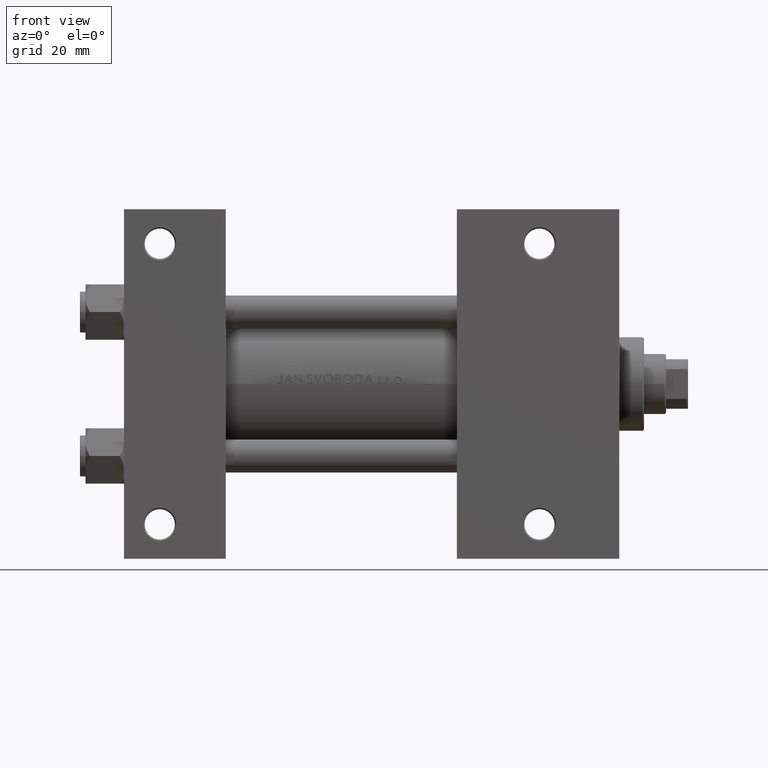
[diagram: clean part render]
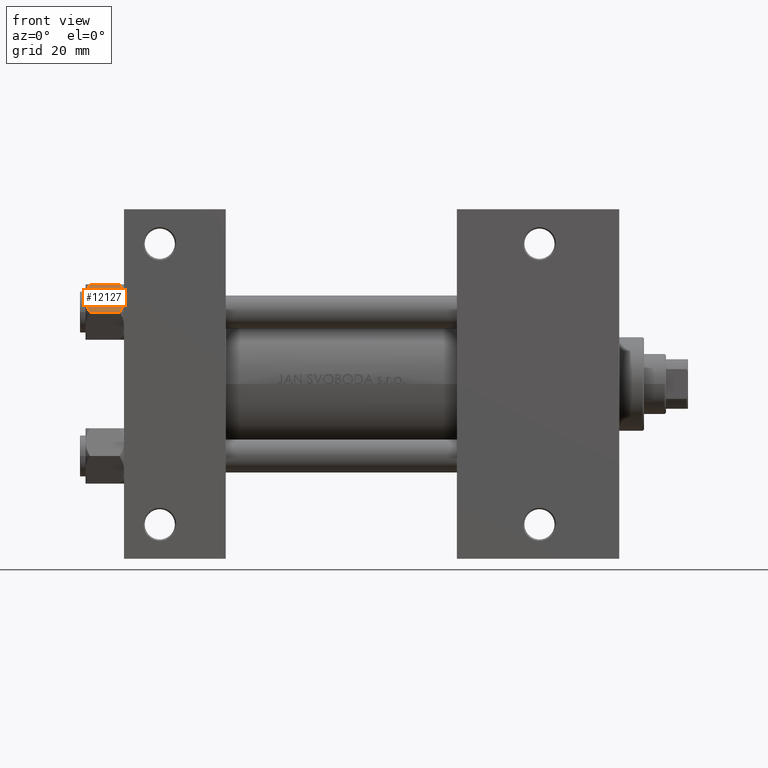
[diagram: same view with one face highlighted and labeled with its STEP entity id]
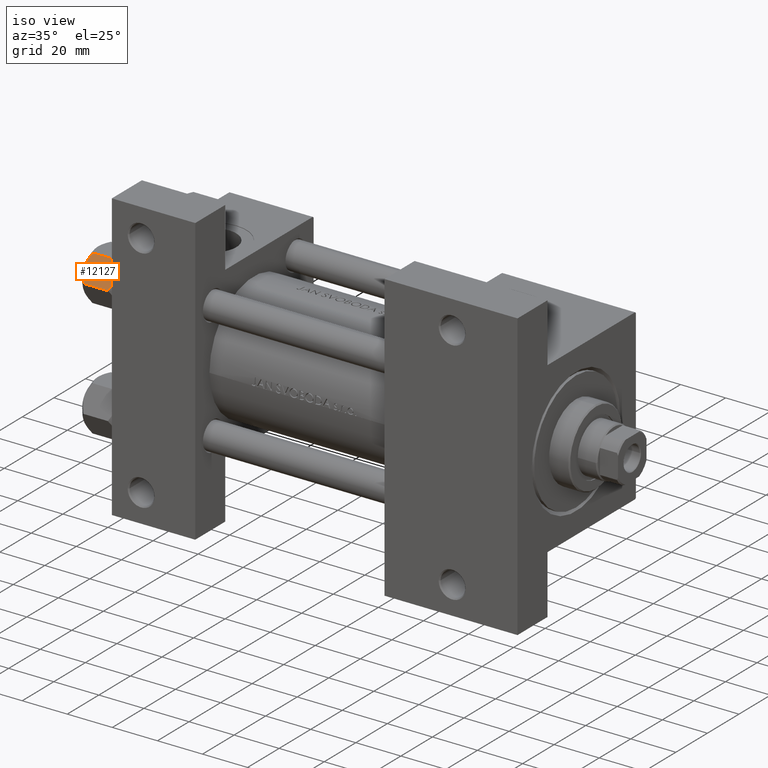
[diagram: same view with one face highlighted and labeled with its STEP entity id]
A machine part, front view. The second image highlights one B-rep face of the part: STEP entity #12127.
A second angle (iso view) of the same face is appended — the face is thin or edge-on in the first view.
In plain terms, the highlighted planar face has unit normal (0, 0.866, -0.5).
Its self-contained STEP definition (entity closure, byte-faithful):
#545 = CARTESIAN_POINT ( 'NONE',  ( -8.969430103550381617, -4.590921729663306472, 4.863663183134191758E-15 ) ) ;
#581 = CARTESIAN_POINT ( 'NONE',  ( -6.265545725125286403, -9.274186850887383926, -12.89876091710047135 ) ) ;
#788 = CARTESIAN_POINT ( 'NONE',  ( -9.729165168613651105, -3.275021996682077052, -0.1903979688073393906 ) ) ;
#2126 = CARTESIAN_POINT ( 'NONE',  ( -9.974696630283188981, -2.849749030213787560, -0.3002673809867339449 ) ) ;
#2481 = EDGE_CURVE ( 'NONE', #12085, #10444, #13566, .T. ) ;
#3557 = CARTESIAN_POINT ( 'NONE',  ( -11.16445427487471598, -0.7890283410877912962, -1.101239082899529764 ) ) ;
#4037 = CARTESIAN_POINT ( 'NONE',  ( -8.715000000000005187, -5.031607595987585668, 0.000000000000000000 ) ) ;
#4903 = CARTESIAN_POINT ( 'NONE',  ( -9.716999946243696229, -3.296092779912219495, -13.84547602999602134 ) ) ;
#6563 = VERTEX_POINT ( 'NONE', #44956 ) ;
#8023 = CARTESIAN_POINT ( 'NONE',  ( -9.227666995912100489, -4.143642311704119230, -0.03994118060690584476 ) ) ;
#8891 = CARTESIAN_POINT ( 'NONE',  ( -11.16498164529022041, -0.7881149087337220305, -12.89823354668505040 ) ) ;
#9445 = CARTESIAN_POINT ( 'NONE',  ( -11.61999999999999922, 6.301834029662224111E-15, -1.556784808024812117 ) ) ;
#9859 = CARTESIAN_POINT ( 'NONE',  ( -7.713000053756306151, -6.767122412062949621, -0.1545239700039825748 ) ) ;
#10444 = VERTEX_POINT ( 'NONE', #16686 ) ;
#10541 = VERTEX_POINT ( 'NONE', #9445 ) ;
#10846 = ORIENTED_EDGE ( 'NONE', *, *, #2481, .F. ) ;
#11508 = EDGE_CURVE ( 'NONE', #10541, #40321, #14269, .T. ) ;
#12085 = VERTEX_POINT ( 'NONE', #32571 ) ;
#12127 = ADVANCED_FACE ( 'NONE', ( #29563 ), #26081, .F. ) ;
#13230 = ORIENTED_EDGE ( 'NONE', *, *, #41067, .F. ) ;
#13245 = CARTESIAN_POINT ( 'NONE',  ( -8.715000000000005187, -5.031607595987585668, 0.000000000000000000 ) ) ;
#13309 = VECTOR ( 'NONE', #43766, 1000.000000000000000 ) ;
#13566 = B_SPLINE_CURVE_WITH_KNOTS ( 'NONE', 3,
 ( #34927, #581, #45156, #30710, #38420, #19747, #15036, #22980 ),
 .UNSPECIFIED., .F., .F.,
 ( 4, 2, 2, 4 ),
 ( 2.544312114906334931E-07, 0.003011550106433545128, 0.004517197944044571388, 0.006022845781655597648 ),
 .UNSPECIFIED. ) ;
#13683 = VERTEX_POINT ( 'NONE', #19256 ) ;
#13905 = DIRECTION ( 'NONE',  ( 0.8660254037844390407, 0.4999999999999995004, 0.000000000000000000 ) ) ;
#14269 = B_SPLINE_CURVE_WITH_KNOTS ( 'NONE', 3,
 ( #37648, #3557, #21040, #2126, #788, #8023, #545, #4037 ),
 .UNSPECIFIED., .F., .F.,
 ( 4, 2, 2, 4 ),
 ( 2.544312114899214560E-07, 0.003011550106433539924, 0.004517197944044563582, 0.006022845781655587240 ),
 .UNSPECIFIED. ) ;
#15036 = CARTESIAN_POINT ( 'NONE',  ( -8.460569896449618099, -5.472293462311855095, -14.00000000000000355 ) ) ;
#16379 = CARTESIAN_POINT ( 'NONE',  ( -11.61999999999999922, 6.270720075510426383E-15, -12.44321519197518811 ) ) ;
#16686 = CARTESIAN_POINT ( 'NONE',  ( -8.715000000000005187, -5.031607595987585668, -14.00000000000000000 ) ) ;
#18387 = AXIS2_PLACEMENT_3D ( 'NONE', #28819, #13905, #47768 ) ;
#19256 = CARTESIAN_POINT ( 'NONE',  ( -5.810000000000000497, -10.06321519197517844, -1.556784808024815225 ) ) ;
#19747 = CARTESIAN_POINT ( 'NONE',  ( -8.202333004087901003, -5.919572880271046778, -13.96005881939309390 ) ) ;
#19856 = CARTESIAN_POINT ( 'NONE',  ( -8.715000000000005187, -5.031607595987585668, -14.00000000000000000 ) ) ;
#20095 = CARTESIAN_POINT ( 'NONE',  ( -10.69662495661650325, -1.599332489581326122, -13.28854452935654962 ) ) ;
#21040 = CARTESIAN_POINT ( 'NONE',  ( -10.69859855102501101, -1.595914123792257389, -0.7141438259524618415 ) ) ;
#21288 = CARTESIAN_POINT ( 'NONE',  ( -6.265018354709778414, -9.275100283241449972, -1.101766453314953820 ) ) ;
#22803 = EDGE_CURVE ( 'NONE', #12085, #13683, #44014, .T. ) ;
#22980 = CARTESIAN_POINT ( 'NONE',  ( -8.715000000000005187, -5.031607595987585668, -14.00000000000000000 ) ) ;
#23832 = CARTESIAN_POINT ( 'NONE',  ( -9.220295946303432189, -4.156409344131445138, -14.00000000000000711 ) ) ;
#25043 = CARTESIAN_POINT ( 'NONE',  ( -6.733375043383497349, -8.463882702393840773, -0.7114554706434500497 ) ) ;
#26081 = PLANE ( 'NONE',  #18387 ) ;
#27307 = B_SPLINE_CURVE_WITH_KNOTS ( 'NONE', 3,
 ( #19856, #23832, #4903, #20095, #8891, #16379 ),
 .UNSPECIFIED., .F., .F.,
 ( 4, 2, 4 ),
 ( 0.006022845781655597648, 0.009013049135303643697, 0.01200325248895169061 ),
 .UNSPECIFIED. ) ;
#28762 = CARTESIAN_POINT ( 'NONE',  ( -8.209704053696569304, -5.906805847843719981, 4.553649124439113890E-15 ) ) ;
#28819 = CARTESIAN_POINT ( 'NONE',  ( -5.810000000000000497, -10.06321519197517844, -14.00000000000000000 ) ) ;
#29563 = FACE_OUTER_BOUND ( 'NONE', #35585, .T. ) ;
#30306 = ORIENTED_EDGE ( 'NONE', *, *, #22803, .T. ) ;
#30710 = CARTESIAN_POINT ( 'NONE',  ( -7.455303369716807182, -7.213466161761382445, -13.69973261901325934 ) ) ;
#32509 = CARTESIAN_POINT ( 'NONE',  ( -8.715000000000005187, -5.031607595987585668, 0.000000000000000000 ) ) ;
#32571 = CARTESIAN_POINT ( 'NONE',  ( -5.810000000000000497, -10.06321519197517844, -12.44321519197518455 ) ) ;
#34927 = CARTESIAN_POINT ( 'NONE',  ( -5.810000000000000497, -10.06321519197517844, -12.44321519197518455 ) ) ;
#35349 = EDGE_CURVE ( 'NONE', #10444, #6563, #27307, .T. ) ;
#35585 = EDGE_LOOP ( 'NONE', ( #10846, #30306, #40823, #42585, #13230, #40654 ) ) ;
#36482 = CARTESIAN_POINT ( 'NONE',  ( -5.810000000000000497, -10.06321519197517844, -1.556784808024815225 ) ) ;
#36525 = EDGE_CURVE ( 'NONE', #40321, #13683, #45047, .T. ) ;
#37648 = CARTESIAN_POINT ( 'NONE',  ( -11.61999999999999922, 6.301834029662224111E-15, -1.556784808024812117 ) ) ;
#38420 = CARTESIAN_POINT ( 'NONE',  ( -7.700834831386345058, -6.788193195293090731, -13.80960203119265906 ) ) ;
#39513 = LINE ( 'NONE', #39757, #48000 ) ;
#39757 = CARTESIAN_POINT ( 'NONE',  ( -11.61999999999999922, 6.288644352490894150E-15, -14.00000000000000000 ) ) ;
#40321 = VERTEX_POINT ( 'NONE', #13245 ) ;
#40654 = ORIENTED_EDGE ( 'NONE', *, *, #35349, .F. ) ;
#40823 = ORIENTED_EDGE ( 'NONE', *, *, #36525, .F. ) ;
#41067 = EDGE_CURVE ( 'NONE', #6563, #10541, #39513, .T. ) ;
#42585 = ORIENTED_EDGE ( 'NONE', *, *, #11508, .F. ) ;
#42755 = DIRECTION ( 'NONE',  ( -0.000000000000000000, -0.000000000000000000, 1.000000000000000000 ) ) ;
#43766 = DIRECTION ( 'NONE',  ( -0.000000000000000000, -0.000000000000000000, 1.000000000000000000 ) ) ;
#44014 = LINE ( 'NONE', #47763, #13309 ) ;
#44956 = CARTESIAN_POINT ( 'NONE',  ( -11.61999999999999922, 6.270720075510426383E-15, -12.44321519197518811 ) ) ;
#45047 = B_SPLINE_CURVE_WITH_KNOTS ( 'NONE', 3,
 ( #32509, #28762, #9859, #25043, #21288, #36482 ),
 .UNSPECIFIED., .F., .F.,
 ( 4, 2, 4 ),
 ( 0.006022845781655587240, 0.009013049135303635023, 0.01200325248895168541 ),
 .UNSPECIFIED. ) ;
#45156 = CARTESIAN_POINT ( 'NONE',  ( -6.731401448974990487, -8.467301068182912616, -13.28585617404753627 ) ) ;
#47763 = CARTESIAN_POINT ( 'NONE',  ( -5.810000000000000497, -10.06321519197517844, -14.00000000000000000 ) ) ;
#47768 = DIRECTION ( 'NONE',  ( -0.4999999999999994449, 0.8660254037844389297, 0.000000000000000000 ) ) ;
#48000 = VECTOR ( 'NONE', #42755, 1000.000000000000000 ) ;